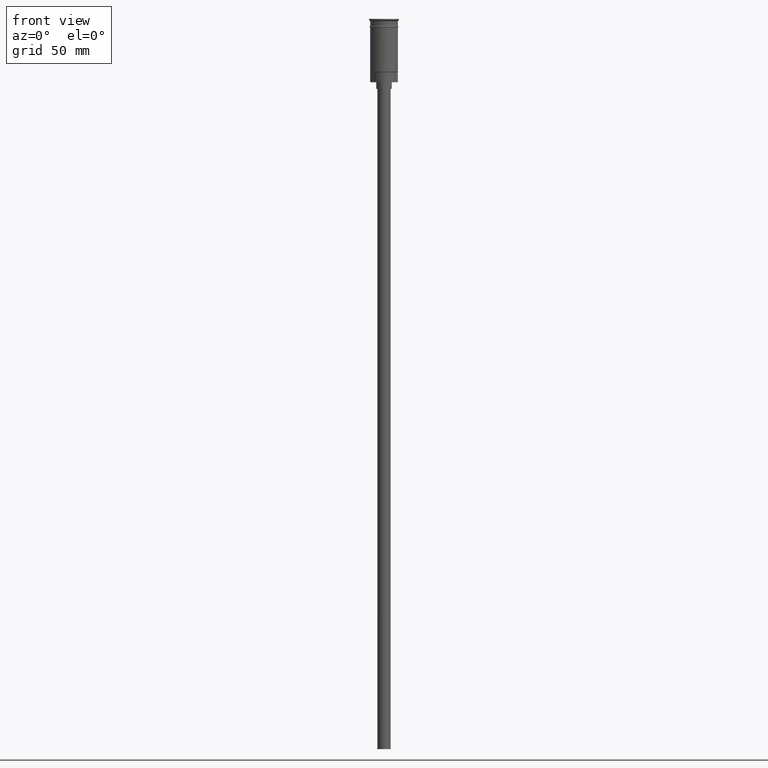
[diagram: clean part render]
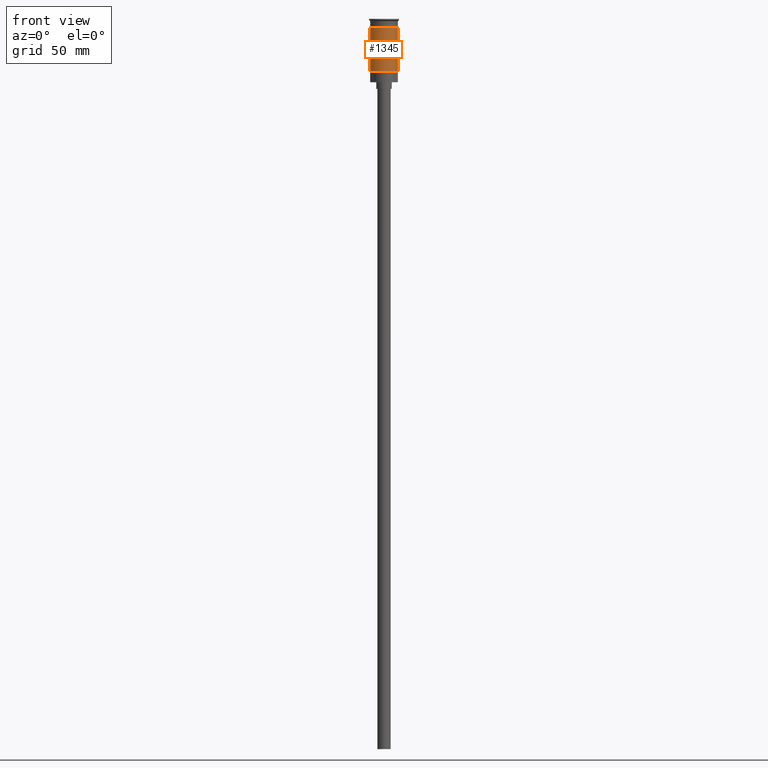
[diagram: same view with one face highlighted and labeled with its STEP entity id]
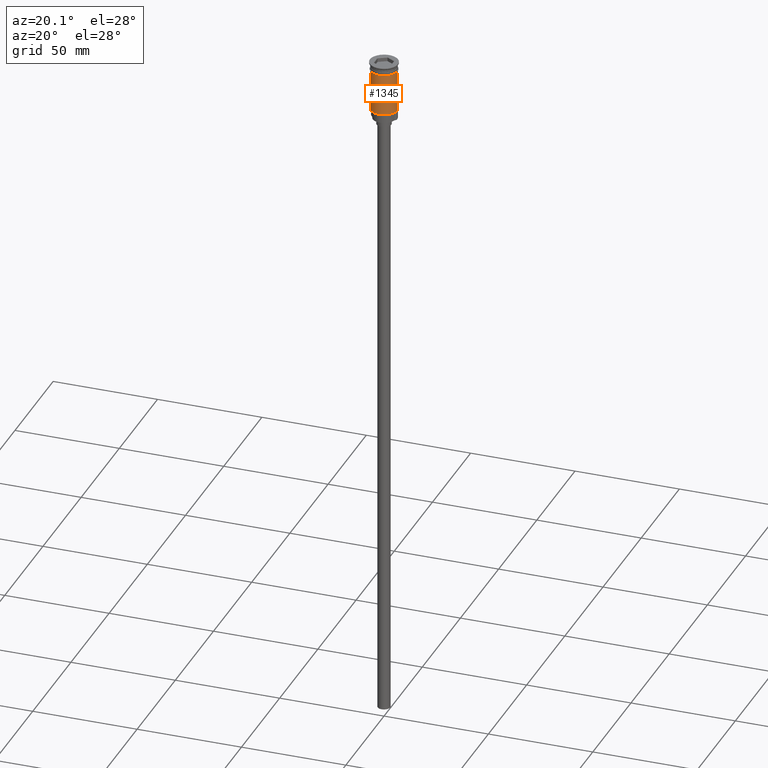
[diagram: same view with one face highlighted and labeled with its STEP entity id]
A machine part, front view. The second image highlights one B-rep face of the part: STEP entity #1345.
A second angle (auxiliary view) of the same face is appended — the face is thin or edge-on in the first view.
In plain terms, the highlighted cylindrical surface (edge-blend (fillet) strip) has radius 6.25 mm, axis along (-0, -0, 1).
Its self-contained STEP definition (entity closure, byte-faithful):
#146 = ORIENTED_EDGE ( 'NONE', *, *, #476, .F. ) ;
#147 = EDGE_LOOP ( 'NONE', ( #1137, #1419, #520, #146 ) ) ;
#155 = DIRECTION ( 'NONE',  ( 1.000000000000000000, 0.000000000000000000, 0.000000000000000000 ) ) ;
#189 = CARTESIAN_POINT ( 'NONE',  ( -6.249999999999997335, 7.654042494670954648E-16, 0.000000000000000000 ) ) ;
#207 = VERTEX_POINT ( 'NONE', #993 ) ;
#211 = CARTESIAN_POINT ( 'NONE',  ( 6.249999999999997335, 0.000000000000000000, 0.000000000000000000 ) ) ;
#225 = DIRECTION ( 'NONE',  ( 1.000000000000000000, 0.000000000000000000, 0.000000000000000000 ) ) ;
#238 = CARTESIAN_POINT ( 'NONE',  ( -6.250000000000000000, 7.654042494670958593E-16, -3.799999999999998490 ) ) ;
#353 = EDGE_CURVE ( 'NONE', #207, #753, #1412, .T. ) ;
#476 = EDGE_CURVE ( 'NONE', #1253, #753, #709, .T. ) ;
#520 = ORIENTED_EDGE ( 'NONE', *, *, #353, .T. ) ;
#580 = VECTOR ( 'NONE', #798, 1000.000000000000000 ) ;
#709 = CIRCLE ( 'NONE', #764, 6.250000000000000000 ) ;
#721 = DIRECTION ( 'NONE',  ( -1.000000000000000000, 0.000000000000000000, 0.000000000000000000 ) ) ;
#753 = VERTEX_POINT ( 'NONE', #1098 ) ;
#762 = CARTESIAN_POINT ( 'NONE',  ( 0.000000000000000000, 0.000000000000000000, 0.000000000000000000 ) ) ;
#764 = AXIS2_PLACEMENT_3D ( 'NONE', #979, #1467, #225 ) ;
#790 = AXIS2_PLACEMENT_3D ( 'NONE', #762, #1017, #155 ) ;
#798 = DIRECTION ( 'NONE',  ( -0.000000000000000000, -0.000000000000000000, 1.000000000000000000 ) ) ;
#807 = VERTEX_POINT ( 'NONE', #1081 ) ;
#813 = DIRECTION ( 'NONE',  ( -0.000000000000000000, -0.000000000000000000, 1.000000000000000000 ) ) ;
#979 = CARTESIAN_POINT ( 'NONE',  ( 0.000000000000000000, 0.000000000000000000, -3.799999999999998490 ) ) ;
#993 = CARTESIAN_POINT ( 'NONE',  ( 6.249999999999997335, 7.654042494670953662E-16, -23.80000000000003624 ) ) ;
#1017 = DIRECTION ( 'NONE',  ( -0.000000000000000000, -0.000000000000000000, 1.000000000000000000 ) ) ;
#1081 = CARTESIAN_POINT ( 'NONE',  ( -6.249999999999995559, 0.000000000000000000, -23.80000000000003624 ) ) ;
#1094 = CARTESIAN_POINT ( 'NONE',  ( 0.000000000000000000, 0.000000000000000000, -23.80000000000003624 ) ) ;
#1098 = CARTESIAN_POINT ( 'NONE',  ( 6.250000000000000000, 0.000000000000000000, -3.799999999999998490 ) ) ;
#1137 = ORIENTED_EDGE ( 'NONE', *, *, #1144, .F. ) ;
#1144 = EDGE_CURVE ( 'NONE', #807, #1253, #1319, .T. ) ;
#1175 = AXIS2_PLACEMENT_3D ( 'NONE', #1094, #1342, #721 ) ;
#1238 = CIRCLE ( 'NONE', #1175, 6.249999999999997335 ) ;
#1252 = CYLINDRICAL_SURFACE ( 'NONE', #790, 6.249999999999997335 ) ;
#1253 = VERTEX_POINT ( 'NONE', #238 ) ;
#1319 = LINE ( 'NONE', #189, #1389 ) ;
#1342 = DIRECTION ( 'NONE',  ( -0.000000000000000000, -0.000000000000000000, 1.000000000000000000 ) ) ;
#1345 = ADVANCED_FACE ( 'NONE', ( #1346 ), #1252, .T. ) ;
#1346 = FACE_OUTER_BOUND ( 'NONE', #147, .T. ) ;
#1389 = VECTOR ( 'NONE', #813, 1000.000000000000000 ) ;
#1412 = LINE ( 'NONE', #211, #580 ) ;
#1419 = ORIENTED_EDGE ( 'NONE', *, *, #1585, .T. ) ;
#1467 = DIRECTION ( 'NONE',  ( -0.000000000000000000, -0.000000000000000000, 1.000000000000000000 ) ) ;
#1585 = EDGE_CURVE ( 'NONE', #807, #207, #1238, .T. ) ;